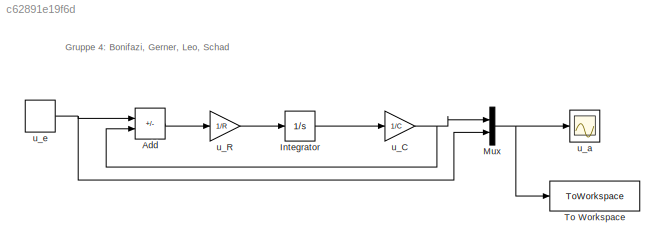
MODEL slx_c62891e19f6d
KIND model
CONFIG AbsTol = auto
CONFIG EnableMultiTasking = off
CONFIG FixedStep = 100e-6
CONFIG MaxStep = auto
CONFIG MinStep = auto
CONFIG RelTol = 1e-3
CONFIG SampleTimeConstraint = Unconstrained
CONFIG SolverName = FixedStepAuto
CONFIG StartTime = 0.0
CONFIG StopTime = 0.5
BLOCK [Sum] Add
  IconShape = rectangular
  Inputs = +-
  Ports = [2, 1]
BLOCK [Integrator] Integrator
  Ports = [1, 1]
BLOCK [Mux] Mux
  DisplayOption = bar
  Inputs = 2
  Ports = [2, 1]
BLOCK [ToWorkspace] To Workspace
  FixptAsFi = on
  MaxDataPoints = inf
  Ports = [1]
  SampleTime = -1
  SaveFormat = Timeseries
  VariableName = simout
BLOCK [Gain] u_C
  Gain = 1/C
BLOCK [Gain] u_R
  Gain = 1/R
BLOCK [Scope] u_a
  Floating = off
  NumInputPorts = 1
  Ports = [1]
  ScopeSpecificationString = Simulink.scopes.TimeScopeBlockCfg('CurrentConfiguration', extmgr.ConfigurationSet(extmgr.Configuration('Core','General UI',true),extmgr.Configuration('Core','Source UI',true),extmgr.Configuration('Sources','WiredSimulink',true),extmgr.Configuration('Visuals','Time Domain',true,'SerializedDisplays',{struct('MinYLimReal','-0.03508','MaxYLimReal','8.00000','YLabelReal','','MinYLimMag','0.00000','MaxY...<+1374ch>
BLOCK [DiscretePulseGenerator] u_e
  Amplitude = ue_hat
  Period = T_PWM
  Ports = [0, 1]
  PulseType = Time based
  PulseWidth = d
ANNOTATION (root): Gruppe 4: Bonifazi, Gerner, Leo, Schad
LINE Add:1 -> u_R:1
LINE Integrator:1 -> u_C:1
NET Mux:1 -> To Workspace:1, u_a:1
NET u_C:1 -> Add:2, Mux:1
LINE u_R:1 -> Integrator:1
NET u_e:1 -> Add:1, Mux:2
note: NET lines group one-source signal fan-out (src -> all destinations, sorted); 1:1 wires keep LINE
